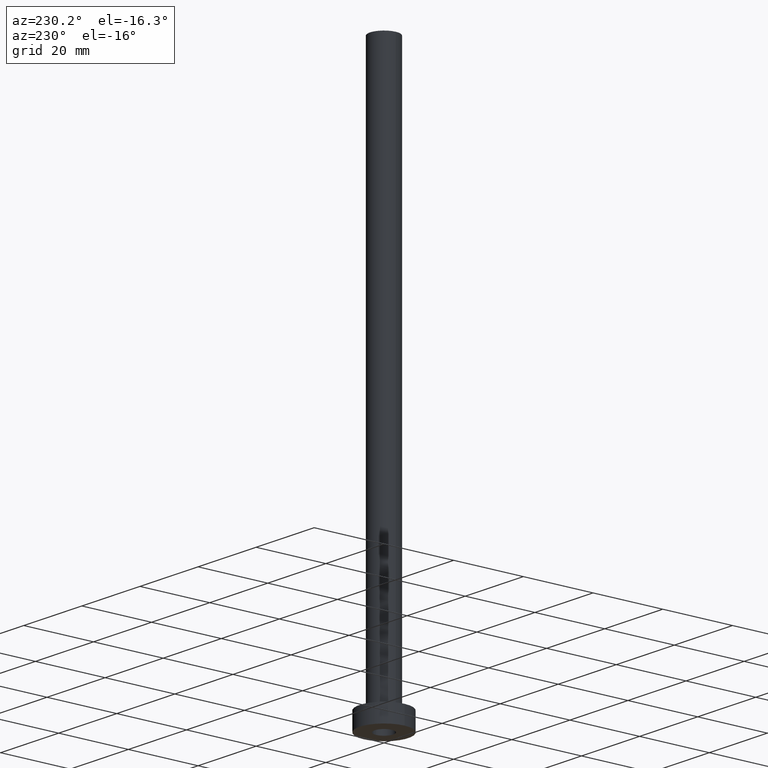
[diagram: clean part render]
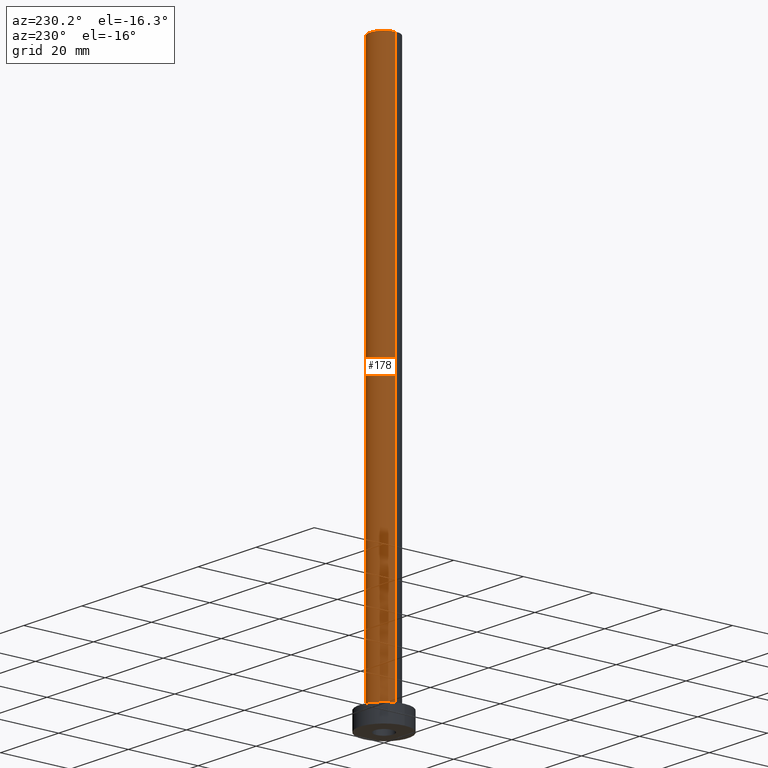
[diagram: same view with one face highlighted and labeled with its STEP entity id]
A machine part, auxiliary view. The second image highlights one B-rep face of the part: STEP entity #178.
In plain terms, the highlighted cylindrical surface (edge-blend (fillet) strip) has radius 4 mm, axis along (-0, -0, -1).
Its self-contained STEP definition (entity closure, byte-faithful):
#22 = DIRECTION ( 'NONE',  ( 1.000000000000000000, 0.000000000000000000, 0.000000000000000000 ) ) ;
#24 = CARTESIAN_POINT ( 'NONE',  ( 0.000000000000000000, 0.000000000000000000, 160.0000000000000000 ) ) ;
#50 = DIRECTION ( 'NONE',  ( -0.000000000000000000, -0.000000000000000000, -1.000000000000000000 ) ) ;
#55 = AXIS2_PLACEMENT_3D ( 'NONE', #24, #59, #22 ) ;
#59 = DIRECTION ( 'NONE',  ( 0.000000000000000000, 0.000000000000000000, 1.000000000000000000 ) ) ;
#65 = EDGE_CURVE ( 'NONE', #122, #300, #344, .T. ) ;
#68 = VECTOR ( 'NONE', #400, 1000.000000000000000 ) ;
#73 = DIRECTION ( 'NONE',  ( -1.000000000000000000, 0.000000000000000000, 0.000000000000000000 ) ) ;
#85 = CARTESIAN_POINT ( 'NONE',  ( -4.000000000000000000, 0.000000000000000000, 160.0000000000000000 ) ) ;
#86 = CARTESIAN_POINT ( 'NONE',  ( 0.000000000000000000, 0.000000000000000000, 160.0000000000000000 ) ) ;
#96 = EDGE_CURVE ( 'NONE', #312, #300, #257, .T. ) ;
#113 = DIRECTION ( 'NONE',  ( 1.000000000000000000, 0.000000000000000000, 0.000000000000000000 ) ) ;
#116 = CARTESIAN_POINT ( 'NONE',  ( 0.000000000000000000, 0.000000000000000000, 5.500000000000005329 ) ) ;
#122 = VERTEX_POINT ( 'NONE', #241 ) ;
#126 = AXIS2_PLACEMENT_3D ( 'NONE', #116, #159, #113 ) ;
#132 = CARTESIAN_POINT ( 'NONE',  ( -4.000000000000000000, 0.000000000000000000, 5.500000000000005329 ) ) ;
#134 = CARTESIAN_POINT ( 'NONE',  ( -4.000000000000000000, 0.000000000000000000, 160.0000000000000000 ) ) ;
#141 = ORIENTED_EDGE ( 'NONE', *, *, #294, .F. ) ;
#159 = DIRECTION ( 'NONE',  ( 0.000000000000000000, 0.000000000000000000, 1.000000000000000000 ) ) ;
#168 = CIRCLE ( 'NONE', #55, 4.000000000000000000 ) ;
#176 = CARTESIAN_POINT ( 'NONE',  ( 4.000000000000000000, 4.898587196589412829E-16, 160.0000000000000000 ) ) ;
#178 = ADVANCED_FACE ( 'NONE', ( #388 ), #390, .T. ) ;
#183 = ORIENTED_EDGE ( 'NONE', *, *, #96, .F. ) ;
#199 = ORIENTED_EDGE ( 'NONE', *, *, #65, .T. ) ;
#219 = DIRECTION ( 'NONE',  ( -0.000000000000000000, -0.000000000000000000, -1.000000000000000000 ) ) ;
#227 = LINE ( 'NONE', #333, #68 ) ;
#228 = AXIS2_PLACEMENT_3D ( 'NONE', #86, #50, #73 ) ;
#241 = CARTESIAN_POINT ( 'NONE',  ( 4.000000000000000000, 4.898587196589412829E-16, 5.500000000000005329 ) ) ;
#246 = ORIENTED_EDGE ( 'NONE', *, *, #441, .T. ) ;
#257 = LINE ( 'NONE', #85, #368 ) ;
#269 = EDGE_LOOP ( 'NONE', ( #141, #246, #199, #183 ) ) ;
#294 = EDGE_CURVE ( 'NONE', #325, #312, #168, .T. ) ;
#300 = VERTEX_POINT ( 'NONE', #132 ) ;
#312 = VERTEX_POINT ( 'NONE', #134 ) ;
#325 = VERTEX_POINT ( 'NONE', #176 ) ;
#333 = CARTESIAN_POINT ( 'NONE',  ( 4.000000000000000000, 4.898587196589412829E-16, 160.0000000000000000 ) ) ;
#344 = CIRCLE ( 'NONE', #126, 4.000000000000000000 ) ;
#368 = VECTOR ( 'NONE', #219, 1000.000000000000000 ) ;
#388 = FACE_OUTER_BOUND ( 'NONE', #269, .T. ) ;
#390 = CYLINDRICAL_SURFACE ( 'NONE', #228, 4.000000000000000000 ) ;
#400 = DIRECTION ( 'NONE',  ( -0.000000000000000000, -0.000000000000000000, -1.000000000000000000 ) ) ;
#441 = EDGE_CURVE ( 'NONE', #325, #122, #227, .T. ) ;